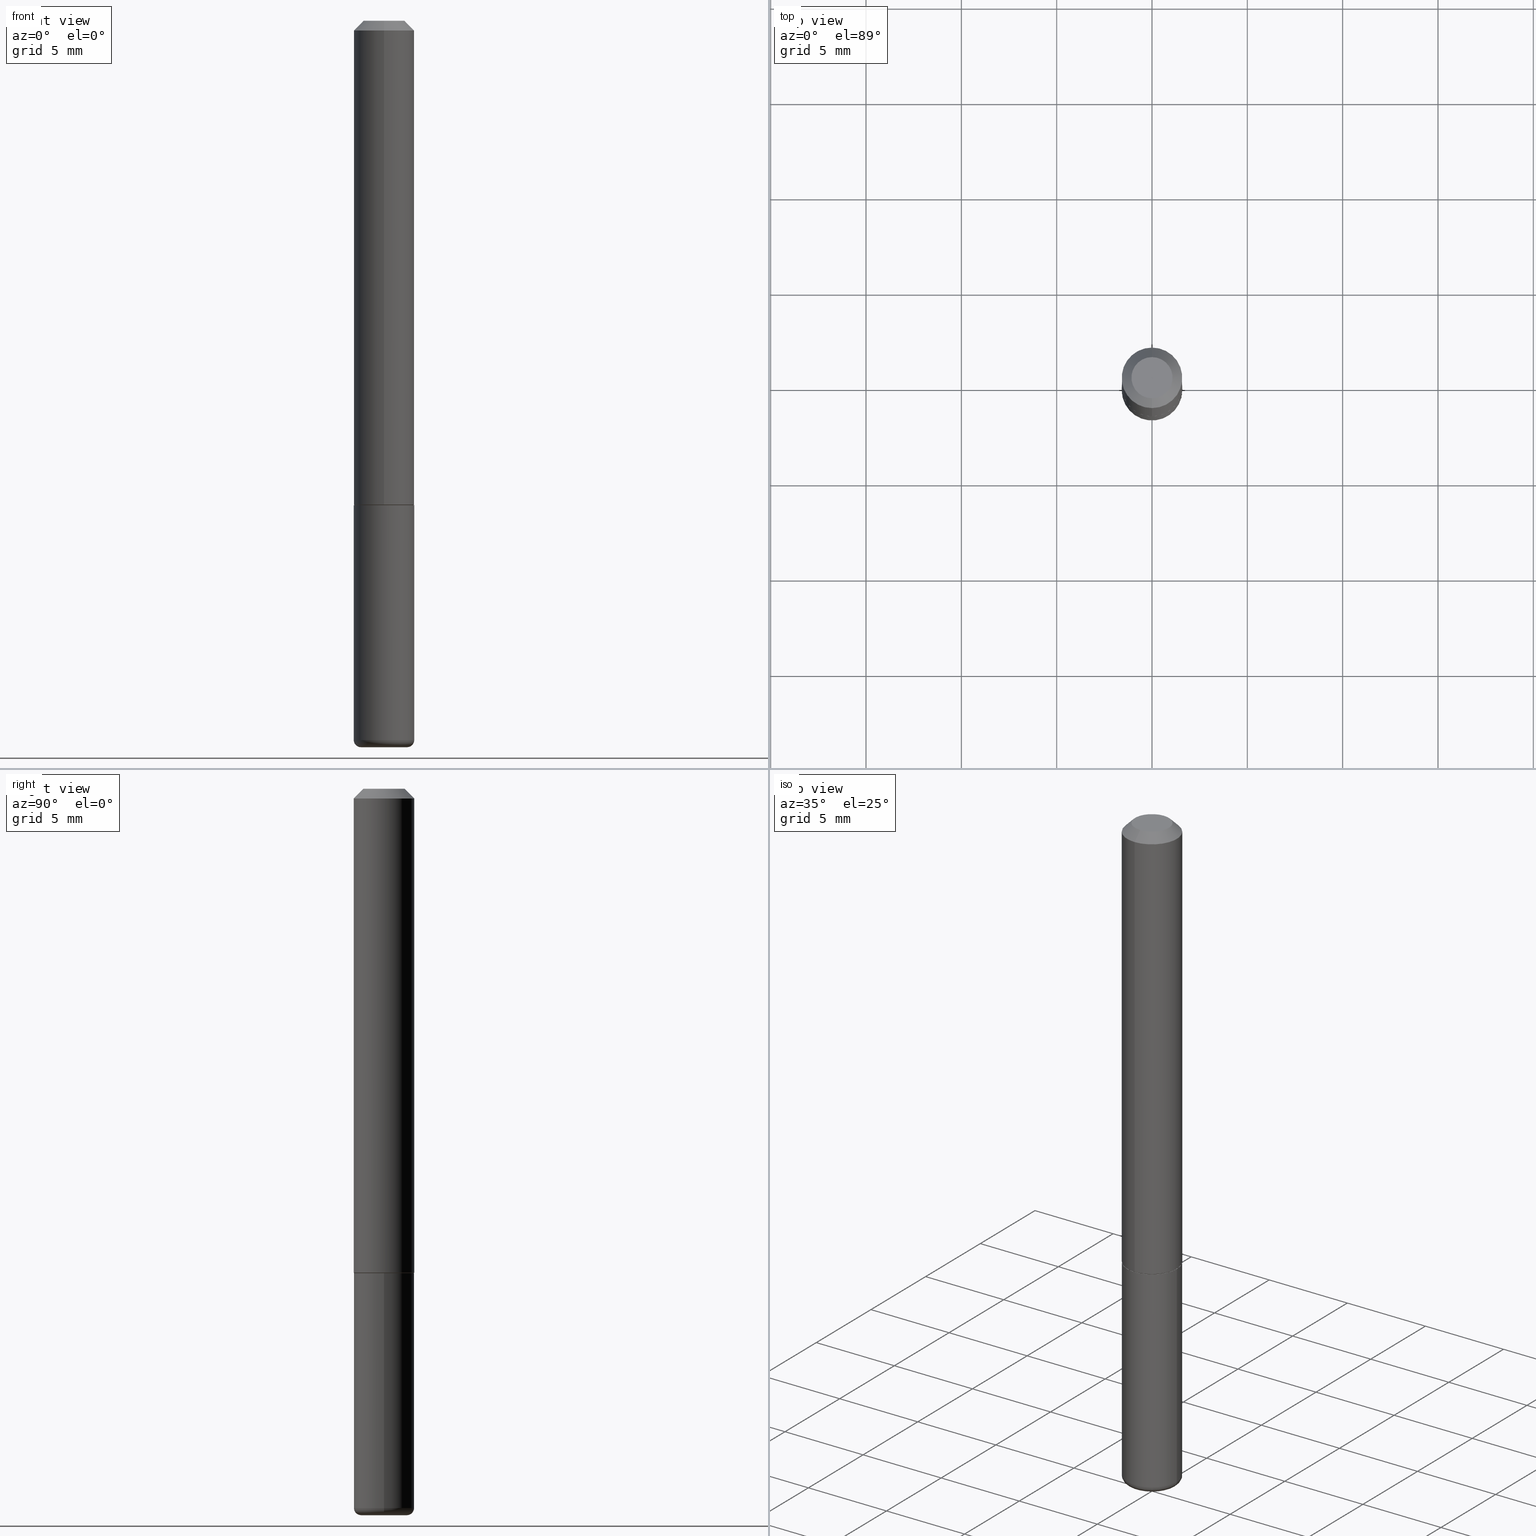
[diagram: canonical four-view strip — front | top / right | iso, engineering-drawing reading convention]
A machine part, canonical four-view strip (front | top / right | iso — engineering-drawing reading convention). The complete STEP part file that produces these views, byte-faithful:
ISO-10303-21;
HEADER;
FILE_DESCRIPTION (( 'STEP AP203' ),
    '1' );
FILE_NAME ('38357.STEP',
    '2024-03-03T00:37:23',
    ( '' ),
    ( '' ),
    'SwSTEP 2.0',
    'SolidWorks 2023',
    '' );
FILE_SCHEMA (( 'CONFIG_CONTROL_DESIGN' ));
ENDSEC;

DATA;
#1 = ORIENTED_EDGE ( 'NONE', *, *, #30, .T. ) ;
#2 = EDGE_LOOP ( 'NONE', ( #62, #355 ) ) ;
#3 = APPROVAL ( #223, 'UNSPECIFIED' ) ;
#4 = CYLINDRICAL_SURFACE ( 'NONE', #40, 0.06250000000000001388 ) ;
#5 = AXIS2_PLACEMENT_3D ( 'NONE', #12, #112, #14 ) ;
#6 = EDGE_LOOP ( 'NONE', ( #209, #31, #375, #313 ) ) ;
#7 = MANIFOLD_SOLID_BREP ( 'Body-Move/Copy2[2]', #116 ) ;
#8 = LINE ( 'NONE', #141, #350 ) ;
#9 = ORIENTED_EDGE ( 'NONE', *, *, #133, .T. ) ;
#10 = CARTESIAN_POINT ( 'NONE',  ( 0.000000000000000000, 0.000000000000000000, 0.000000000000000000 ) ) ;
#11 = CIRCLE ( 'NONE', #88, 0.04750000000000004219 ) ;
#12 = CARTESIAN_POINT ( 'NONE',  ( -0.04750000000000004219, -4.847341988696023209E-15, -1.484999999999999876 ) ) ;
#13 = FACE_OUTER_BOUND ( 'NONE', #322, .T. ) ;
#14 = DIRECTION ( 'NONE',  ( -1.000000000000000000, 7.105427357601001859E-15, 0.000000000000000000 ) ) ;
#15 = PRODUCT_RELATED_PRODUCT_CATEGORY ( 'detail', '', ( #164 ) ) ;
#16 = PERSON_AND_ORGANIZATION ( #238, #342 ) ;
#17 = TOROIDAL_SURFACE ( 'NONE', #110, 0.04750000000000004219, 0.01499999999999997689 ) ;
#18 = CC_DESIGN_APPROVAL ( #144, ( #83 ) ) ;
#19 = PERSON_AND_ORGANIZATION ( #238, #342 ) ;
#20 = DIRECTION ( 'NONE',  ( -2.445468806185136597E-29, 3.491481338843145583E-15, 1.000000000000000000 ) ) ;
#21 = VERTEX_POINT ( 'NONE', #140 ) ;
#22 = COORDINATED_UNIVERSAL_TIME_OFFSET ( 5, 0, .BEHIND. ) ;
#23 = DIRECTION ( 'NONE',  ( -2.445468806185136877E-29, 3.491481338843145188E-15, 1.000000000000000000 ) ) ;
#24 = DIRECTION ( 'NONE',  ( -2.445468806185136597E-29, 3.491481338843145583E-15, 1.000000000000000000 ) ) ;
#25 = VECTOR ( 'NONE', #196, 39.37007874015748143 ) ;
#26 = CIRCLE ( 'NONE', #377, 0.06250000000000001388 ) ;
#27 = VERTEX_POINT ( 'NONE', #172 ) ;
#28 = CALENDAR_DATE ( 2024, 2, 3 ) ;
#29 = LINE ( 'NONE', #414, #25 ) ;
#30 = EDGE_CURVE ( 'NONE', #168, #255, #195, .T. ) ;
#31 = ORIENTED_EDGE ( 'NONE', *, *, #204, .T. ) ;
#32 = DIRECTION ( 'NONE',  ( -6.982962677686265922E-15, -1.000000000000000000, 3.524115163091865618E-15 ) ) ;
#33 = EDGE_LOOP ( 'NONE', ( #294, #1, #353, #132 ) ) ;
#34 = AXIS2_PLACEMENT_3D ( 'NONE', #293, #302, #393 ) ;
#35 = CIRCLE ( 'NONE', #5, 0.01499999999999997689 ) ;
#36 = DIRECTION ( 'NONE',  ( -6.982962677686265922E-15, -1.000000000000000000, 4.442029257990668187E-15 ) ) ;
#37 = ORIENTED_EDGE ( 'NONE', *, *, #133, .F. ) ;
#38 = SHAPE_DEFINITION_REPRESENTATION ( #280, #158 ) ;
#39 = ORIENTED_EDGE ( 'NONE', *, *, #75, .F. ) ;
#40 = AXIS2_PLACEMENT_3D ( 'NONE', #142, #388, #105 ) ;
#41 = VECTOR ( 'NONE', #182, 39.37007874015748143 ) ;
#42 = DIRECTION ( 'NONE',  ( -6.982962677686265133E-15, -1.000000000000000000, 4.370956789862812472E-15 ) ) ;
#43 = ADVANCED_FACE ( 'NONE', ( #387 ), #4, .T. ) ;
#44 = CARTESIAN_POINT ( 'NONE',  ( -4.364351673553918666E-16, -0.06250000000000002776, 2.202571976932416997E-16 ) ) ;
#45 = DIRECTION ( 'NONE',  ( -2.445468806185136877E-29, 3.491481338843145188E-15, 1.000000000000000000 ) ) ;
#46 = ADVANCED_FACE ( 'NONE', ( #109 ), #359, .T. ) ;
#47 = VECTOR ( 'NONE', #331, 39.37007874015748143 ) ;
#48 = DIRECTION ( 'NONE',  ( -6.982962677686266711E-15, -1.000000000000000000, 3.524115163091865618E-15 ) ) ;
#49 = EDGE_CURVE ( 'NONE', #324, #21, #185, .T. ) ;
#50 = DIRECTION ( 'NONE',  ( -2.445468806185136597E-29, 3.491481338843145583E-15, 1.000000000000000000 ) ) ;
#51 = DIRECTION ( 'NONE',  ( 2.422680728509238326E-29, -3.524115163091865223E-15, -1.000000000000000000 ) ) ;
#52 =( CONVERSION_BASED_UNIT ( 'INCH', #279 ) LENGTH_UNIT ( ) NAMED_UNIT ( #176 ) );
#53 = AXIS2_PLACEMENT_3D ( 'NONE', #389, #145, #77 ) ;
#54 = EDGE_CURVE ( 'NONE', #189, #27, #336, .T. ) ;
#55 = CARTESIAN_POINT ( 'NONE',  ( 2.422680728509237765E-29, -3.524115163091864040E-15, -0.9999999999999996669 ) ) ;
#56 = COORDINATED_UNIVERSAL_TIME_OFFSET ( 5, 0, .BEHIND. ) ;
#57 = LINE ( 'NONE', #191, #70 ) ;
#58 = DIRECTION ( 'NONE',  ( -2.422680728509238326E-29, 3.524115163091865223E-15, 1.000000000000000000 ) ) ;
#59 = ORIENTED_EDGE ( 'NONE', *, *, #401, .T. ) ;
#60 = SECURITY_CLASSIFICATION_LEVEL ( 'unclassified' ) ;
#61 = ADVANCED_FACE ( 'NONE', ( #321 ), #234, .T. ) ;
#62 = ORIENTED_EDGE ( 'NONE', *, *, #75, .T. ) ;
#63 = EDGE_CURVE ( 'NONE', #175, #300, #76, .T. ) ;
#64 = EDGE_LOOP ( 'NONE', ( #121, #263 ) ) ;
#65 = EDGE_CURVE ( 'NONE', #371, #73, #297, .T. ) ;
#66 = ORIENTED_EDGE ( 'NONE', *, *, #396, .T. ) ;
#67 = CARTESIAN_POINT ( 'NONE',  ( 2.422680728509237765E-29, -3.524115163091864040E-15, -0.9999999999999996669 ) ) ;
#68 = CC_DESIGN_PERSON_AND_ORGANIZATION_ASSIGNMENT ( #190, #370, ( #155 ) ) ;
#69 = DIRECTION ( 'NONE',  ( -2.445468806185136597E-29, 3.491481338843145583E-15, 1.000000000000000000 ) ) ;
#70 = VECTOR ( 'NONE', #23, 39.37007874015748143 ) ;
#71 = CONICAL_SURFACE ( 'NONE', #305, 0.06150000000000004768, 0.7853981633975849475 ) ;
#72 = CALENDAR_DATE ( 2024, 2, 3 ) ;
#73 = VERTEX_POINT ( 'NONE', #123 ) ;
#74 = DIRECTION ( 'NONE',  ( -2.422680728509237765E-29, 3.524115163091865618E-15, 1.000000000000000000 ) ) ;
#75 = EDGE_CURVE ( 'NONE', #406, #332, #241, .T. ) ;
#76 = CIRCLE ( 'NONE', #417, 0.04250000000000016265 ) ;
#77 = DIRECTION ( 'NONE',  ( 6.982962677686265922E-15, 1.000000000000000000, -3.551402391763545142E-15 ) ) ;
#78 = CYLINDRICAL_SURFACE ( 'NONE', #384, 0.06250000000000002776 ) ;
#79 = CARTESIAN_POINT ( 'NONE',  ( 4.440892098500754352E-16, 0.06249999999999659994, -0.9990000000000002212 ) ) ;
#80 = CARTESIAN_POINT ( 'NONE',  ( -0.04750000000000004219, -4.820237393555338596E-15, -1.499999999999999778 ) ) ;
#81 = PLANE ( 'NONE',  #197 ) ;
#82 = AXIS2_PLACEMENT_3D ( 'NONE', #402, #367, #318 ) ;
#83 = SECURITY_CLASSIFICATION ( '', '', #60 ) ;
#84 = CARTESIAN_POINT ( 'NONE',  ( -3.601761448830055392E-16, -0.04250000000000016265, -4.945825507274390257E-17 ) ) ;
#85 = FACE_OUTER_BOUND ( 'NONE', #6, .T. ) ;
#86 = APPLICATION_PROTOCOL_DEFINITION ( 'international standard', 'config_control_design', 1994, #183 ) ;
#87 = FACE_OUTER_BOUND ( 'NONE', #413, .T. ) ;
#88 = AXIS2_PLACEMENT_3D ( 'NONE', #244, #211, #184 ) ;
#89 = ORIENTED_EDGE ( 'NONE', *, *, #54, .T. ) ;
#90 = DATE_AND_TIME ( #28, #156 ) ;
#91 = CARTESIAN_POINT ( 'NONE',  ( -4.364351673553682501E-16, -0.06250000000000363598, -0.9989999999999996660 ) ) ;
#92 = ORIENTED_EDGE ( 'NONE', *, *, #147, .F. ) ;
#93 = CARTESIAN_POINT ( 'NONE',  ( 0.000000000000000000, 0.000000000000000000, 0.000000000000000000 ) ) ;
#94 = ORIENTED_EDGE ( 'NONE', *, *, #228, .F. ) ;
#95 = CC_DESIGN_PERSON_AND_ORGANIZATION_ASSIGNMENT ( #149, #348, ( #284 ) ) ;
#96 = CARTESIAN_POINT ( 'NONE',  ( 3.631521177184927577E-29, -5.184849788182070703E-15, -1.484999999999999876 ) ) ;
#97 = EDGE_LOOP ( 'NONE', ( #349, #316, #92, #373 ) ) ;
#98 = PLANE ( 'NONE',  #262 ) ;
#99 = ORIENTED_EDGE ( 'NONE', *, *, #147, .T. ) ;
#100 = ADVANCED_FACE ( 'NONE', ( #192 ), #17, .T. ) ;
#101 = CC_DESIGN_PERSON_AND_ORGANIZATION_ASSIGNMENT ( #194, #160, ( #83 ) ) ;
#102 = ORIENTED_EDGE ( 'NONE', *, *, #378, .F. ) ;
#103 = CIRCLE ( 'NONE', #114, 0.06250000000000012490 ) ;
#104 = LOCAL_TIME ( 19, 37, 23.00000000000000000, #22 ) ;
#105 = DIRECTION ( 'NONE',  ( 1.000000000000000000, -6.982962677686267499E-15, 4.876176775795935793E-29 ) ) ;
#106 = DIRECTION ( 'NONE',  ( -2.445468806185136597E-29, 3.491481338843145583E-15, 1.000000000000000000 ) ) ;
#107 = CARTESIAN_POINT ( 'NONE',  ( 3.668203209277704335E-29, -5.237222008264717388E-15, -1.499999999999999778 ) ) ;
#108 = FACE_OUTER_BOUND ( 'NONE', #292, .T. ) ;
#109 = FACE_OUTER_BOUND ( 'NONE', #130, .T. ) ;
#110 = AXIS2_PLACEMENT_3D ( 'NONE', #96, #24, #315 ) ;
#111 = CIRCLE ( 'NONE', #271, 0.06150000000000004768 ) ;
#112 = DIRECTION ( 'NONE',  ( 7.105427357601001859E-15, 1.000000000000000000, -3.491481338843145583E-15 ) ) ;
#113 = CARTESIAN_POINT ( 'NONE',  ( 4.826783117839010544E-45, -7.021205631581191590E-31, -1.992331495041487428E-16 ) ) ;
#114 = AXIS2_PLACEMENT_3D ( 'NONE', #267, #207, #42 ) ;
#115 = CARTESIAN_POINT ( 'NONE',  ( -4.294522046776814963E-16, -0.06150000000000357264, -0.9999999999999994449 ) ) ;
#116 = CLOSED_SHELL ( 'NONE', ( #222, #178, #327, #199, #298, #250, #258, #118 ) ) ;
#117 = CARTESIAN_POINT ( 'NONE',  ( 4.405364961712868626E-16, 0.06149999999999652273, -1.000000000000000000 ) ) ;
#118 = ADVANCED_FACE ( 'NONE', ( #157 ), #257, .F. ) ;
#119 = COORDINATED_UNIVERSAL_TIME_OFFSET ( 5, 0, .BEHIND. ) ;
#120 = DIRECTION ( 'NONE',  ( 0.000000000000000000, 0.000000000000000000, 1.000000000000000000 ) ) ;
#121 = ORIENTED_EDGE ( 'NONE', *, *, #382, .F. ) ;
#122 = AXIS2_PLACEMENT_3D ( 'NONE', #55, #161, #188 ) ;
#123 = CARTESIAN_POINT ( 'NONE',  ( -4.287811248607198352E-16, -0.06250000000000001388, -0.01999999999999984776 ) ) ;
#124 = ORIENTED_EDGE ( 'NONE', *, *, #333, .T. ) ;
#125 = UNCERTAINTY_MEASURE_WITH_UNIT (LENGTH_MEASURE( 1.000000000000000082E-05 ), #52, 'distance_accuracy_value', 'NONE');
#126 = CALENDAR_DATE ( 2024, 2, 3 ) ;
#127 = ORIENTED_EDGE ( 'NONE', *, *, #236, .F. ) ;
#128 = DATE_AND_TIME ( #411, #351 ) ;
#129 = DIRECTION ( 'NONE',  ( -6.982962677686265922E-15, -1.000000000000000000, 3.551402391763545142E-15 ) ) ;
#130 = EDGE_LOOP ( 'NONE', ( #416, #296 ) ) ;
#131 = CARTESIAN_POINT ( 'NONE',  ( 3.631521177184928138E-29, -5.184849788182071492E-15, -1.485000000000000098 ) ) ;
#132 = ORIENTED_EDGE ( 'NONE', *, *, #49, .F. ) ;
#133 = EDGE_CURVE ( 'NONE', #326, #227, #103, .T. ) ;
#134 = DIRECTION ( 'NONE',  ( -2.445468806185136597E-29, 3.491481338843145583E-15, 1.000000000000000000 ) ) ;
#135 = DIRECTION ( 'NONE',  ( -2.422680728509238326E-29, 3.524115163091865223E-15, 1.000000000000000000 ) ) ;
#136 = DIRECTION ( 'NONE',  ( 2.422680728509237765E-29, -3.524115163091865618E-15, -1.000000000000000000 ) ) ;
#137 = ORIENTED_EDGE ( 'NONE', *, *, #364, .T. ) ;
#138 = CIRCLE ( 'NONE', #202, 0.04250000000000016265 ) ;
#139 = DIRECTION ( 'NONE',  ( 6.982962677686265922E-15, 1.000000000000000000, -3.524115163091865618E-15 ) ) ;
#140 = CARTESIAN_POINT ( 'NONE',  ( 0.06250000000000001388, -5.621284955537463950E-15, -1.485000000000000098 ) ) ;
#141 = CARTESIAN_POINT ( 'NONE',  ( 4.440892098500628134E-16, 0.06250000000000002776, -2.202571976932416997E-16 ) ) ;
#142 = CARTESIAN_POINT ( 'NONE',  ( 0.000000000000000000, 0.000000000000000000, 0.000000000000000000 ) ) ;
#143 = CYLINDRICAL_SURFACE ( 'NONE', #368, 0.06250000000000002776 ) ;
#144 = APPROVAL ( #278, 'UNSPECIFIED' ) ;
#145 = DIRECTION ( 'NONE',  ( 2.422680728509238326E-29, -3.524115163091865223E-15, -1.000000000000000000 ) ) ;
#146 = CARTESIAN_POINT ( 'NONE',  ( -0.06250000000000001388, -4.740760578332009665E-15, -1.485000000000000098 ) ) ;
#147 = EDGE_CURVE ( 'NONE', #227, #326, #392, .T. ) ;
#148 = CLOSED_SHELL ( 'NONE', ( #43, #61, #310, #216, #100, #46 ) ) ;
#149 = PERSON_AND_ORGANIZATION ( #238, #342 ) ;
#150 = DIRECTION ( 'NONE',  ( 6.982962677686265922E-15, 1.000000000000000000, -3.551402391763545142E-15 ) ) ;
#151 = MECHANICAL_CONTEXT ( 'NONE', #183, 'mechanical' ) ;
#152 = DIRECTION ( 'NONE',  ( 1.000000000000000000, -6.982962677686261189E-15, 4.883557194083111219E-29 ) ) ;
#153 = EDGE_LOOP ( 'NONE', ( #66, #261, #379, #193 ) ) ;
#154 = DIRECTION ( 'NONE',  ( 1.000000000000000000, 0.000000000000000000, 0.000000000000000000 ) ) ;
#155 = PRODUCT_DEFINITION ( 'UNKNOWN', '', #284, #166 ) ;
#156 = LOCAL_TIME ( 19, 37, 23.00000000000000000, #119 ) ;
#157 = FACE_OUTER_BOUND ( 'NONE', #346, .T. ) ;
#158 = ADVANCED_BREP_SHAPE_REPRESENTATION ( '38357', ( #290, #7, #277 ), #405 ) ;
#159 = EDGE_LOOP ( 'NONE', ( #99, #230, #165, #286 ) ) ;
#160 = PERSON_AND_ORGANIZATION_ROLE ( 'classification_officer' ) ;
#161 = DIRECTION ( 'NONE',  ( -2.422680728509238326E-29, 3.524115163091865223E-15, 1.000000000000000000 ) ) ;
#162 = CARTESIAN_POINT ( 'NONE',  ( 2.445468806185136036E-29, -3.491481338843144399E-15, -0.9999999999999996669 ) ) ;
#163 = ORIENTED_EDGE ( 'NONE', *, *, #239, .T. ) ;
#164 = PRODUCT ( '38357', '38357', '', ( #151 ) ) ;
#165 = ORIENTED_EDGE ( 'NONE', *, *, #323, .F. ) ;
#166 = DESIGN_CONTEXT ( 'detailed design', #212, 'design' ) ;
#167 = LOCAL_TIME ( 19, 37, 23.00000000000000000, #56 ) ;
#168 = VERTEX_POINT ( 'NONE', #80 ) ;
#169 = DATE_AND_TIME ( #72, #337 ) ;
#170 = CARTESIAN_POINT ( 'NONE',  ( 2.422680728509237765E-29, -3.524115163091864040E-15, -0.9999999999999996669 ) ) ;
#171 = DIRECTION ( 'NONE',  ( 1.000000000000000000, -6.982962677686261189E-15, 0.000000000000000000 ) ) ;
#172 = CARTESIAN_POINT ( 'NONE',  ( -4.294522046776814963E-16, -0.06150000000000357264, -0.9999999999999994449 ) ) ;
#173 = CARTESIAN_POINT ( 'NONE',  ( 4.364351673553917187E-16, 0.06249999999999988204, -0.02000000000000029185 ) ) ;
#174 = VECTOR ( 'NONE', #288, 39.37007874015748143 ) ;
#175 = VERTEX_POINT ( 'NONE', #84 ) ;
#176 = DIMENSIONAL_EXPONENTS ( 1.000000000000000000, 0.000000000000000000, 0.000000000000000000, 0.000000000000000000, 0.000000000000000000, 0.000000000000000000, 0.000000000000000000 ) ;
#177 = DIRECTION ( 'NONE',  ( -2.422680728509238326E-29, 3.524115163091865223E-15, 1.000000000000000000 ) ) ;
#178 = ADVANCED_FACE ( 'NONE', ( #180 ), #78, .T. ) ;
#179 = CARTESIAN_POINT ( 'NONE',  ( 4.364351673553917187E-16, 0.06249999999999988204, -0.02000000000000029185 ) ) ;
#180 = FACE_OUTER_BOUND ( 'NONE', #159, .T. ) ;
#181 = DIRECTION ( 'NONE',  ( -6.982962677686266711E-15, -1.000000000000000000, 3.491481338843145583E-15 ) ) ;
#182 = DIRECTION ( 'NONE',  ( 4.937700262164537787E-15, 0.7071067811865436870, -0.7071067811865513475 ) ) ;
#183 = APPLICATION_CONTEXT ( 'configuration controlled 3d designs of mechanical parts and assemblies' ) ;
#184 = DIRECTION ( 'NONE',  ( 1.000000000000000000, -6.982962677686276177E-15, 0.000000000000000000 ) ) ;
#185 = CIRCLE ( 'NONE', #330, 0.06250000000000001388 ) ;
#186 =( NAMED_UNIT ( * ) PLANE_ANGLE_UNIT ( ) SI_UNIT ( $, .RADIAN. ) );
#187 = FACE_OUTER_BOUND ( 'NONE', #97, .T. ) ;
#188 = DIRECTION ( 'NONE',  ( -6.982962677686265922E-15, -1.000000000000000000, 4.442029257990668187E-15 ) ) ;
#189 = VERTEX_POINT ( 'NONE', #117 ) ;
#190 = PERSON_AND_ORGANIZATION ( #238, #342 ) ;
#191 = CARTESIAN_POINT ( 'NONE',  ( 0.06250000000000001388, -4.364351673553918173E-16, 3.047610484872460571E-30 ) ) ;
#192 = FACE_OUTER_BOUND ( 'NONE', #33, .T. ) ;
#193 = ORIENTED_EDGE ( 'NONE', *, *, #285, .F. ) ;
#194 = PERSON_AND_ORGANIZATION ( #238, #342 ) ;
#195 = CIRCLE ( 'NONE', #208, 0.04750000000000004219 ) ;
#196 = DIRECTION ( 'NONE',  ( -4.851104656540954020E-15, -0.7071067811865485719, -0.7071067811865464625 ) ) ;
#197 = AXIS2_PLACEMENT_3D ( 'NONE', #308, #358, #338 ) ;
#198 = ORIENTED_EDGE ( 'NONE', *, *, #204, .F. ) ;
#199 = ADVANCED_FACE ( 'NONE', ( #13 ), #276, .T. ) ;
#200 = EDGE_LOOP ( 'NONE', ( #94, #89, #251, #37 ) ) ;
#201 = AXIS2_PLACEMENT_3D ( 'NONE', #247, #51, #150 ) ;
#202 = AXIS2_PLACEMENT_3D ( 'NONE', #113, #270, #334 ) ;
#203 = DIRECTION ( 'NONE',  ( 1.000000000000000000, -6.982962677686261189E-15, 0.000000000000000000 ) ) ;
#204 = EDGE_CURVE ( 'NONE', #175, #73, #29, .T. ) ;
#205 = ORIENTED_EDGE ( 'NONE', *, *, #364, .F. ) ;
#206 = DIRECTION ( 'NONE',  ( -6.982962677686265922E-15, -1.000000000000000000, 3.524115163091865618E-15 ) ) ;
#207 = DIRECTION ( 'NONE',  ( -2.422680728509238326E-29, 3.524115163091865223E-15, 1.000000000000000000 ) ) ;
#208 = AXIS2_PLACEMENT_3D ( 'NONE', #268, #134, #264 ) ;
#209 = ORIENTED_EDGE ( 'NONE', *, *, #63, .F. ) ;
#210 = CC_DESIGN_APPROVAL ( #319, ( #155 ) ) ;
#211 = DIRECTION ( 'NONE',  ( -2.445468806185136597E-29, 3.491481338843145583E-15, 1.000000000000000000 ) ) ;
#212 = APPLICATION_CONTEXT ( 'configuration controlled 3d designs of mechanical parts and assemblies' ) ;
#213 = CARTESIAN_POINT ( 'NONE',  ( 4.845361457018493257E-31, -7.048230326183754359E-17, -0.02000000000000006981 ) ) ;
#214 = DIRECTION ( 'NONE',  ( -2.422680728509238326E-29, 3.524115163091865223E-15, 1.000000000000000000 ) ) ;
#215 = AXIS2_PLACEMENT_3D ( 'NONE', #282, #58, #129 ) ;
#216 = ADVANCED_FACE ( 'NONE', ( #87 ), #249, .T. ) ;
#217 = DIRECTION ( 'NONE',  ( -6.982962677686265922E-15, -1.000000000000000000, 3.551402391763545142E-15 ) ) ;
#218 = LINE ( 'NONE', #115, #47 ) ;
#219 = COORDINATED_UNIVERSAL_TIME_OFFSET ( 5, 0, .BEHIND. ) ;
#220 = PERSON_AND_ORGANIZATION_ROLE ( 'design_owner' ) ;
#221 = VECTOR ( 'NONE', #45, 39.37007874015748143 ) ;
#222 = ADVANCED_FACE ( 'NONE', ( #187 ), #304, .T. ) ;
#223 = APPROVAL_STATUS ( 'not_yet_approved' ) ;
#224 = DIRECTION ( 'NONE',  ( 1.000000000000000000, -6.982962677686269077E-15, 0.000000000000000000 ) ) ;
#225 = ORIENTED_EDGE ( 'NONE', *, *, #340, .F. ) ;
#226 = PERSON_AND_ORGANIZATION ( #238, #342 ) ;
#227 = VERTEX_POINT ( 'NONE', #91 ) ;
#228 = EDGE_CURVE ( 'NONE', #189, #326, #345, .T. ) ;
#229 = CC_DESIGN_SECURITY_CLASSIFICATION ( #83, ( #284 ) ) ;
#230 = ORIENTED_EDGE ( 'NONE', *, *, #340, .T. ) ;
#231 = FACE_OUTER_BOUND ( 'NONE', #200, .T. ) ;
#232 = ORIENTED_EDGE ( 'NONE', *, *, #65, .T. ) ;
#233 = CARTESIAN_POINT ( 'NONE',  ( 3.631521177184928138E-29, -5.184849788182071492E-15, -1.485000000000000098 ) ) ;
#234 = TOROIDAL_SURFACE ( 'NONE', #376, 0.04750000000000004219, 0.01499999999999997689 ) ;
#235 = AXIS2_PLACEMENT_3D ( 'NONE', #306, #181, #339 ) ;
#236 = EDGE_CURVE ( 'NONE', #21, #406, #57, .T. ) ;
#237 = FACE_OUTER_BOUND ( 'NONE', #64, .T. ) ;
#238 = PERSON ( 'UNSPECIFIED', 'UNSPECIFIED', 'UNSPECIFIED', ('UNSPECIFIED'), ('UNSPECIFIED'), ('UNSPECIFIED') ) ;
#239 = EDGE_CURVE ( 'NONE', #21, #324, #398, .T. ) ;
#240 = DIRECTION ( 'NONE',  ( -2.422680728509238326E-29, 3.524115163091865223E-15, 1.000000000000000000 ) ) ;
#241 = CIRCLE ( 'NONE', #283, 0.06250000000000001388 ) ;
#242 = CC_DESIGN_APPROVAL ( #3, ( #284 ) ) ;
#243 = LINE ( 'NONE', #44, #266 ) ;
#244 = CARTESIAN_POINT ( 'NONE',  ( 3.668203209277704335E-29, -5.237222008264717388E-15, -1.499999999999999778 ) ) ;
#245 = AXIS2_PLACEMENT_3D ( 'NONE', #107, #295, #381 ) ;
#246 = DIRECTION ( 'NONE',  ( 1.000000000000000000, -6.982962677686269077E-15, 0.000000000000000000 ) ) ;
#247 = CARTESIAN_POINT ( 'NONE',  ( 4.845361457018493257E-31, -7.048230326183754359E-17, -0.02000000000000006981 ) ) ;
#248 = APPROVAL_STATUS ( 'not_yet_approved' ) ;
#249 = CYLINDRICAL_SURFACE ( 'NONE', #82, 0.06250000000000001388 ) ;
#250 = ADVANCED_FACE ( 'NONE', ( #231 ), #71, .T. ) ;
#251 = ORIENTED_EDGE ( 'NONE', *, *, #390, .T. ) ;
#252 = APPROVAL_DATE_TIME ( #309, #319 ) ;
#253 = AXIS2_PLACEMENT_3D ( 'NONE', #213, #177, #217 ) ;
#254 = DIRECTION ( 'NONE',  ( -2.445468806185136597E-29, 3.491481338843145583E-15, 1.000000000000000000 ) ) ;
#255 = VERTEX_POINT ( 'NONE', #386 ) ;
#256 = DATE_AND_TIME ( #126, #104 ) ;
#257 = PLANE ( 'NONE',  #341 ) ;
#258 = ADVANCED_FACE ( 'NONE', ( #237 ), #98, .F. ) ;
#259 = ORIENTED_EDGE ( 'NONE', *, *, #333, .F. ) ;
#260 = DATE_TIME_ROLE ( 'classification_date' ) ;
#261 = ORIENTED_EDGE ( 'NONE', *, *, #314, .T. ) ;
#262 = AXIS2_PLACEMENT_3D ( 'NONE', #356, #74, #206 ) ;
#263 = ORIENTED_EDGE ( 'NONE', *, *, #54, .F. ) ;
#264 = DIRECTION ( 'NONE',  ( 1.000000000000000000, -6.982962677686276177E-15, 0.000000000000000000 ) ) ;
#265 = CC_DESIGN_PERSON_AND_ORGANIZATION_ASSIGNMENT ( #19, #220, ( #164 ) ) ;
#266 = VECTOR ( 'NONE', #269, 39.37007874015748143 ) ;
#267 = CARTESIAN_POINT ( 'NONE',  ( 2.420258047780728810E-29, -3.520591047928773206E-15, -0.9989999999999998881 ) ) ;
#268 = CARTESIAN_POINT ( 'NONE',  ( 3.668203209277704335E-29, -5.237222008264717388E-15, -1.499999999999999778 ) ) ;
#269 = DIRECTION ( 'NONE',  ( -2.422680728509238606E-29, 3.524115163091865618E-15, 1.000000000000000000 ) ) ;
#270 = DIRECTION ( 'NONE',  ( -2.422680728509238326E-29, 3.524115163091865223E-15, 1.000000000000000000 ) ) ;
#271 = AXIS2_PLACEMENT_3D ( 'NONE', #365, #395, #301 ) ;
#272 =( LENGTH_UNIT ( ) NAMED_UNIT ( * ) SI_UNIT ( $, .METRE. ) );
#273 = EDGE_CURVE ( 'NONE', #300, #371, #328, .T. ) ;
#274 = LINE ( 'NONE', #397, #221 ) ;
#275 = DIRECTION ( 'NONE',  ( -2.422680728509238606E-29, 3.524115163091865618E-15, 1.000000000000000000 ) ) ;
#276 = CONICAL_SURFACE ( 'NONE', #201, 0.06249999999999995143, 0.7853981633974463916 ) ;
#277 = AXIS2_PLACEMENT_3D ( 'NONE', #93, #120, #154 ) ;
#278 = APPROVAL_STATUS ( 'not_yet_approved' ) ;
#279 = LENGTH_MEASURE_WITH_UNIT ( LENGTH_MEASURE( 0.02539999999999999897 ), #272 );
#280 = PRODUCT_DEFINITION_SHAPE ( 'NONE', 'NONE',  #155 ) ;
#281 = APPROVAL_ROLE ( '' ) ;
#282 = CARTESIAN_POINT ( 'NONE',  ( 4.845361457018493257E-31, -7.048230326183754359E-17, -0.02000000000000006981 ) ) ;
#283 = AXIS2_PLACEMENT_3D ( 'NONE', #162, #254, #224 ) ;
#284 = PRODUCT_DEFINITION_FORMATION_WITH_SPECIFIED_SOURCE ( 'ANY', '', #164, .NOT_KNOWN. ) ;
#285 = EDGE_CURVE ( 'NONE', #255, #21, #385, .T. ) ;
#286 = ORIENTED_EDGE ( 'NONE', *, *, #401, .F. ) ;
#287 = COORDINATED_UNIVERSAL_TIME_OFFSET ( 5, 0, .BEHIND. ) ;
#288 = DIRECTION ( 'NONE',  ( 5.024295867788748699E-15, 0.7071067811866466046, 0.7071067811864484298 ) ) ;
#289 = ORIENTED_EDGE ( 'NONE', *, *, #273, .T. ) ;
#290 = MANIFOLD_SOLID_BREP ( 'Body-Move/Copy2[1]', #148 ) ;
#291 = CARTESIAN_POINT ( 'NONE',  ( 2.967759138016674396E-16, 0.04250000000000016265, -2.493914691834791931E-16 ) ) ;
#292 = EDGE_LOOP ( 'NONE', ( #225, #9, #59, #369 ) ) ;
#293 = CARTESIAN_POINT ( 'NONE',  ( 2.420258047780728810E-29, -3.520591047928773206E-15, -0.9989999999999998881 ) ) ;
#294 = ORIENTED_EDGE ( 'NONE', *, *, #314, .F. ) ;
#295 = DIRECTION ( 'NONE',  ( 2.438088387897960049E-29, -3.491481338843145188E-15, -1.000000000000000000 ) ) ;
#296 = ORIENTED_EDGE ( 'NONE', *, *, #30, .F. ) ;
#297 = CIRCLE ( 'NONE', #215, 0.06249999999999995143 ) ;
#298 = ADVANCED_FACE ( 'NONE', ( #108 ), #143, .T. ) ;
#299 = APPROVAL_PERSON_ORGANIZATION ( #16, #3, #344 ) ;
#300 = VERTEX_POINT ( 'NONE', #391 ) ;
#301 = DIRECTION ( 'NONE',  ( -6.982962677686265922E-15, -1.000000000000000000, 4.442029257990668187E-15 ) ) ;
#302 = DIRECTION ( 'NONE',  ( -2.422680728509238326E-29, 3.524115163091865223E-15, 1.000000000000000000 ) ) ;
#303 = CARTESIAN_POINT ( 'NONE',  ( 0.06250000000000001388, -3.927916506198536858E-15, -0.9999999999999996669 ) ) ;
#304 = CONICAL_SURFACE ( 'NONE', #122, 0.06150000000000004768, 0.7853981633975849475 ) ;
#305 = AXIS2_PLACEMENT_3D ( 'NONE', #67, #357, #36 ) ;
#306 = CARTESIAN_POINT ( 'NONE',  ( 0.04750000000000004219, -5.516540515372169003E-15, -1.484999999999999876 ) ) ;
#307 = CC_DESIGN_DATE_AND_TIME_ASSIGNMENT ( #90, #407, ( #155 ) ) ;
#308 = CARTESIAN_POINT ( 'NONE',  ( 2.445468806185136036E-29, -3.491481338843144399E-15, -0.9999999999999996669 ) ) ;
#309 = DATE_AND_TIME ( #403, #167 ) ;
#310 = ADVANCED_FACE ( 'NONE', ( #360 ), #81, .F. ) ;
#311 =( NAMED_UNIT ( * ) SI_UNIT ( $, .STERADIAN. ) SOLID_ANGLE_UNIT ( ) );
#312 = PERSON_AND_ORGANIZATION ( #238, #342 ) ;
#313 = ORIENTED_EDGE ( 'NONE', *, *, #273, .F. ) ;
#314 = EDGE_CURVE ( 'NONE', #168, #324, #35, .T. ) ;
#315 = DIRECTION ( 'NONE',  ( 1.000000000000000000, -6.982962677686261189E-15, 4.883557194083111219E-29 ) ) ;
#316 = ORIENTED_EDGE ( 'NONE', *, *, #228, .T. ) ;
#317 = AXIS2_PLACEMENT_3D ( 'NONE', #131, #106, #171 ) ;
#318 = DIRECTION ( 'NONE',  ( 1.000000000000000000, -6.982962677686267499E-15, 4.876176775795935793E-29 ) ) ;
#319 = APPROVAL ( #248, 'UNSPECIFIED' ) ;
#320 = ORIENTED_EDGE ( 'NONE', *, *, #49, .T. ) ;
#321 = FACE_OUTER_BOUND ( 'NONE', #153, .T. ) ;
#322 = EDGE_LOOP ( 'NONE', ( #198, #205, #289, #232 ) ) ;
#323 = EDGE_CURVE ( 'NONE', #73, #371, #363, .T. ) ;
#324 = VERTEX_POINT ( 'NONE', #146 ) ;
#325 = CC_DESIGN_PERSON_AND_ORGANIZATION_ASSIGNMENT ( #226, #366, ( #284 ) ) ;
#326 = VERTEX_POINT ( 'NONE', #79 ) ;
#327 = ADVANCED_FACE ( 'NONE', ( #85 ), #399, .T. ) ;
#328 = LINE ( 'NONE', #173, #41 ) ;
#329 = ORIENTED_EDGE ( 'NONE', *, *, #236, .T. ) ;
#330 = AXIS2_PLACEMENT_3D ( 'NONE', #233, #69, #203 ) ;
#331 = DIRECTION ( 'NONE',  ( -4.937700262165222518E-15, -0.7071067811866417196, 0.7071067811864533148 ) ) ;
#332 = VERTEX_POINT ( 'NONE', #362 ) ;
#333 = EDGE_CURVE ( 'NONE', #324, #332, #274, .T. ) ;
#334 = DIRECTION ( 'NONE',  ( -6.982962677686265922E-15, -1.000000000000000000, 3.524115163091865618E-15 ) ) ;
#335 = CARTESIAN_POINT ( 'NONE',  ( 2.445468806185136036E-29, -3.491481338843144399E-15, -0.9999999999999996669 ) ) ;
#336 = CIRCLE ( 'NONE', #404, 0.06150000000000004768 ) ;
#337 = LOCAL_TIME ( 19, 37, 23.00000000000000000, #219 ) ;
#338 = DIRECTION ( 'NONE',  ( -1.000000000000000000, 6.982962677686265922E-15, -4.876176775795935793E-29 ) ) ;
#339 = DIRECTION ( 'NONE',  ( 1.000000000000000000, -6.982962677686279332E-15, 0.000000000000000000 ) ) ;
#340 = EDGE_CURVE ( 'NONE', #326, #371, #8, .T. ) ;
#341 = AXIS2_PLACEMENT_3D ( 'NONE', #291, #136, #139 ) ;
#342 = ORGANIZATION ( 'UNSPECIFIED', 'UNSPECIFIED', '' ) ;
#343 = APPLICATION_PROTOCOL_DEFINITION ( 'international standard', 'config_control_design', 1994, #212 ) ;
#344 = APPROVAL_ROLE ( '' ) ;
#345 = LINE ( 'NONE', #408, #174 ) ;
#346 = EDGE_LOOP ( 'NONE', ( #137, #410 ) ) ;
#347 = CC_DESIGN_DATE_AND_TIME_ASSIGNMENT ( #128, #260, ( #83 ) ) ;
#348 = PERSON_AND_ORGANIZATION_ROLE ( 'design_supplier' ) ;
#349 = ORIENTED_EDGE ( 'NONE', *, *, #382, .T. ) ;
#350 = VECTOR ( 'NONE', #275, 39.37007874015748143 ) ;
#351 = LOCAL_TIME ( 19, 37, 23.00000000000000000, #287 ) ;
#352 = EDGE_LOOP ( 'NONE', ( #163, #124, #39, #127 ) ) ;
#353 = ORIENTED_EDGE ( 'NONE', *, *, #285, .T. ) ;
#354 = APPROVAL_PERSON_ORGANIZATION ( #312, #319, #281 ) ;
#355 = ORIENTED_EDGE ( 'NONE', *, *, #378, .T. ) ;
#356 = CARTESIAN_POINT ( 'NONE',  ( 2.422680728509237765E-29, -3.524115163091864040E-15, -0.9999999999999996669 ) ) ;
#357 = DIRECTION ( 'NONE',  ( -2.422680728509238326E-29, 3.524115163091865223E-15, 1.000000000000000000 ) ) ;
#358 = DIRECTION ( 'NONE',  ( 2.438088387897960049E-29, -3.491481338843145188E-15, -1.000000000000000000 ) ) ;
#359 = PLANE ( 'NONE',  #245 ) ;
#360 = FACE_OUTER_BOUND ( 'NONE', #2, .T. ) ;
#361 = DIRECTION ( 'NONE',  ( -6.982962677686266711E-15, -1.000000000000000000, 3.524115163091865618E-15 ) ) ;
#362 = CARTESIAN_POINT ( 'NONE',  ( -0.06250000000000001388, -3.894076353662544935E-15, -0.9999999999999996669 ) ) ;
#363 = CIRCLE ( 'NONE', #253, 0.06249999999999995143 ) ;
#364 = EDGE_CURVE ( 'NONE', #300, #175, #138, .T. ) ;
#365 = CARTESIAN_POINT ( 'NONE',  ( 2.422680728509237765E-29, -3.524115163091864040E-15, -0.9999999999999996669 ) ) ;
#366 = PERSON_AND_ORGANIZATION_ROLE ( 'creator' ) ;
#367 = DIRECTION ( 'NONE',  ( -2.445468806185136597E-29, 3.491481338843145583E-15, 1.000000000000000000 ) ) ;
#368 = AXIS2_PLACEMENT_3D ( 'NONE', #10, #240, #361 ) ;
#369 = ORIENTED_EDGE ( 'NONE', *, *, #65, .F. ) ;
#370 = PERSON_AND_ORGANIZATION_ROLE ( 'creator' ) ;
#371 = VERTEX_POINT ( 'NONE', #179 ) ;
#372 = APPROVAL_DATE_TIME ( #256, #3 ) ;
#373 = ORIENTED_EDGE ( 'NONE', *, *, #390, .F. ) ;
#374 = APPROVAL_ROLE ( '' ) ;
#375 = ORIENTED_EDGE ( 'NONE', *, *, #323, .T. ) ;
#376 = AXIS2_PLACEMENT_3D ( 'NONE', #415, #20, #152 ) ;
#377 = AXIS2_PLACEMENT_3D ( 'NONE', #335, #50, #246 ) ;
#378 = EDGE_CURVE ( 'NONE', #332, #406, #26, .T. ) ;
#379 = ORIENTED_EDGE ( 'NONE', *, *, #239, .F. ) ;
#380 = APPROVAL_DATE_TIME ( #169, #144 ) ;
#381 = DIRECTION ( 'NONE',  ( -1.000000000000000000, 6.982962677686265922E-15, -4.876176775795935793E-29 ) ) ;
#382 = EDGE_CURVE ( 'NONE', #27, #189, #111, .T. ) ;
#383 = DIRECTION ( 'NONE',  ( -6.982962677686265922E-15, -1.000000000000000000, 4.442029257990668187E-15 ) ) ;
#384 = AXIS2_PLACEMENT_3D ( 'NONE', #394, #214, #48 ) ;
#385 = CIRCLE ( 'NONE', #235, 0.01499999999999997689 ) ;
#386 = CARTESIAN_POINT ( 'NONE',  ( 0.04750000000000004219, -5.568912735454815688E-15, -1.499999999999999778 ) ) ;
#387 = FACE_OUTER_BOUND ( 'NONE', #352, .T. ) ;
#388 = DIRECTION ( 'NONE',  ( -2.445468806185136597E-29, 3.491481338843145583E-15, 1.000000000000000000 ) ) ;
#389 = CARTESIAN_POINT ( 'NONE',  ( 4.845361457018493257E-31, -7.048230326183754359E-17, -0.02000000000000006981 ) ) ;
#390 = EDGE_CURVE ( 'NONE', #27, #227, #218, .T. ) ;
#391 = CARTESIAN_POINT ( 'NONE',  ( 3.666055405785295545E-16, 0.04250000000000016265, -3.490080439355535768E-16 ) ) ;
#392 = CIRCLE ( 'NONE', #34, 0.06250000000000012490 ) ;
#393 = DIRECTION ( 'NONE',  ( -6.982962677686265133E-15, -1.000000000000000000, 4.370956789862812472E-15 ) ) ;
#394 = CARTESIAN_POINT ( 'NONE',  ( 0.000000000000000000, 0.000000000000000000, 0.000000000000000000 ) ) ;
#395 = DIRECTION ( 'NONE',  ( -2.422680728509238326E-29, 3.524115163091865223E-15, 1.000000000000000000 ) ) ;
#396 = EDGE_CURVE ( 'NONE', #255, #168, #11, .T. ) ;
#397 = CARTESIAN_POINT ( 'NONE',  ( -0.06250000000000001388, 4.440892098500627148E-16, -3.074334431409317165E-30 ) ) ;
#398 = CIRCLE ( 'NONE', #317, 0.06250000000000001388 ) ;
#399 = CONICAL_SURFACE ( 'NONE', #53, 0.06249999999999995143, 0.7853981633974463916 ) ;
#400 = PERSON_AND_ORGANIZATION ( #238, #342 ) ;
#401 = EDGE_CURVE ( 'NONE', #227, #73, #243, .T. ) ;
#402 = CARTESIAN_POINT ( 'NONE',  ( 0.000000000000000000, 0.000000000000000000, 0.000000000000000000 ) ) ;
#403 = CALENDAR_DATE ( 2024, 2, 3 ) ;
#404 = AXIS2_PLACEMENT_3D ( 'NONE', #170, #135, #383 ) ;
#405 =( GEOMETRIC_REPRESENTATION_CONTEXT ( 3 ) GLOBAL_UNCERTAINTY_ASSIGNED_CONTEXT ( ( #125 ) ) GLOBAL_UNIT_ASSIGNED_CONTEXT ( ( #52, #186, #311 ) ) REPRESENTATION_CONTEXT ( 'NONE', 'WORKASPACE' ) );
#406 = VERTEX_POINT ( 'NONE', #303 ) ;
#407 = DATE_TIME_ROLE ( 'creation_date' ) ;
#408 = CARTESIAN_POINT ( 'NONE',  ( 4.369837824924861120E-16, 0.06149999999999652273, -1.000000000000000000 ) ) ;
#409 = CARTESIAN_POINT ( 'NONE',  ( 4.826783117839010544E-45, -7.021205631581191590E-31, -1.992331495041487428E-16 ) ) ;
#410 = ORIENTED_EDGE ( 'NONE', *, *, #63, .T. ) ;
#411 = CALENDAR_DATE ( 2024, 2, 3 ) ;
#412 = DIRECTION ( 'NONE',  ( -2.422680728509238326E-29, 3.524115163091865223E-15, 1.000000000000000000 ) ) ;
#413 = EDGE_LOOP ( 'NONE', ( #259, #320, #329, #102 ) ) ;
#414 = CARTESIAN_POINT ( 'NONE',  ( -4.287811248607198352E-16, -0.06250000000000001388, -0.01999999999999984776 ) ) ;
#415 = CARTESIAN_POINT ( 'NONE',  ( 3.631521177184927577E-29, -5.184849788182070703E-15, -1.484999999999999876 ) ) ;
#416 = ORIENTED_EDGE ( 'NONE', *, *, #396, .F. ) ;
#417 = AXIS2_PLACEMENT_3D ( 'NONE', #409, #412, #32 ) ;
#418 = APPROVAL_PERSON_ORGANIZATION ( #400, #144, #374 ) ;
ENDSEC;
END-ISO-10303-21;
